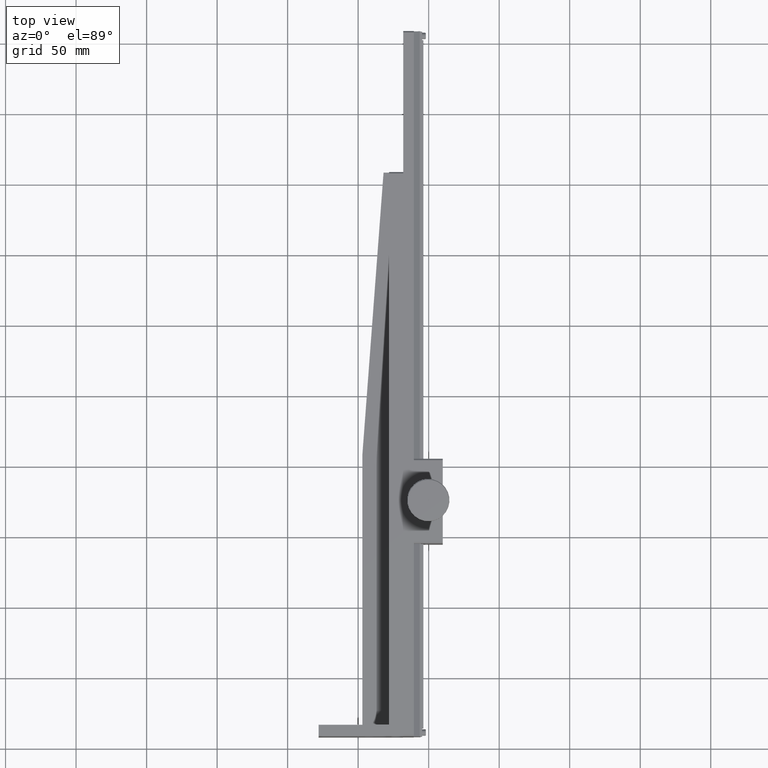
[diagram: clean part render]
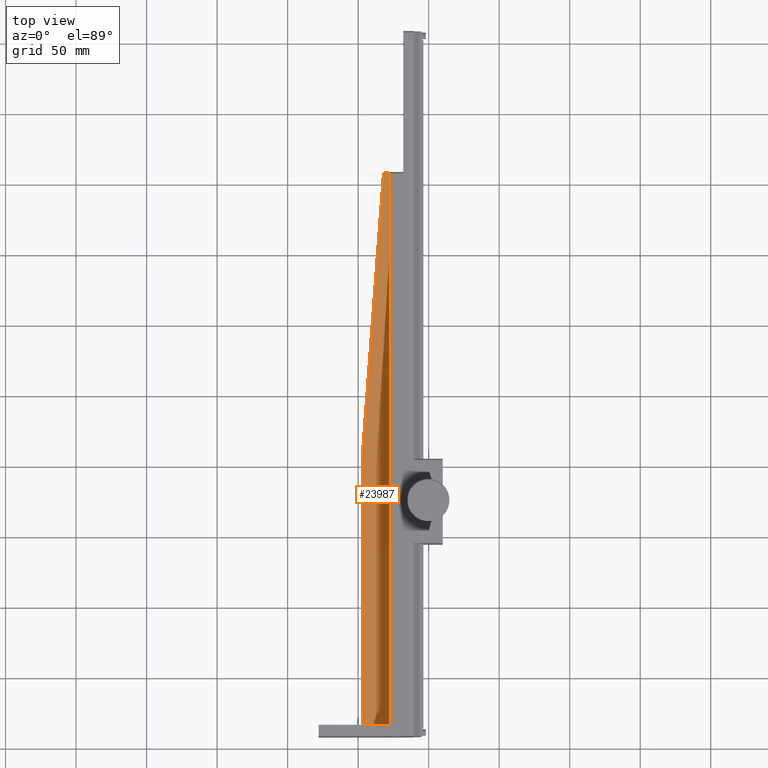
[diagram: same view with one face highlighted and labeled with its STEP entity id]
A machine part, top view. The second image highlights one B-rep face of the part: STEP entity #23987.
In plain terms, the highlighted planar face has unit normal (-0, -0, -1).
Its self-contained STEP definition (entity closure, byte-faithful):
#2255 = LINE ( 'NONE', #36049, #90484 ) ;
#7658 = DIRECTION ( 'NONE',  ( 1.000000000000000000, -1.276756478318930021E-15, -2.044860509396075866E-15 ) ) ;
#8398 = CARTESIAN_POINT ( 'NONE',  ( 3.000000000000266454, 16.00000000000001421, -24.00000000000007105 ) ) ;
#9260 = FACE_OUTER_BOUND ( 'NONE', #66374, .T. ) ;
#11796 = DIRECTION ( 'NONE',  ( -1.276756478318930021E-15, -1.000000000000000000, 2.095098079272746386E-16 ) ) ;
#11897 = DIRECTION ( 'NONE',  ( -1.276756478318930021E-15, -1.000000000000000000, 2.095098079272746386E-16 ) ) ;
#12900 = LINE ( 'NONE', #97671, #36964 ) ;
#13199 = AXIS2_PLACEMENT_3D ( 'NONE', #18108, #100688, #101248 ) ;
#16484 = EDGE_CURVE ( 'NONE', #18690, #26600, #72275, .T. ) ;
#17809 = LINE ( 'NONE', #8398, #51190 ) ;
#18108 = CARTESIAN_POINT ( 'NONE',  ( 3.000000000000766054, 408.0000000000000568, -24.00000000000015277 ) ) ;
#18690 = VERTEX_POINT ( 'NONE', #52942 ) ;
#19666 = CARTESIAN_POINT ( 'NONE',  ( 3.000000000000766054, 408.0000000000000568, -24.00000000000015277 ) ) ;
#23987 = ADVANCED_FACE ( 'NONE', ( #9260 ), #34184, .F. ) ;
#26600 = VERTEX_POINT ( 'NONE', #63745 ) ;
#26649 = DIRECTION ( 'NONE',  ( -1.000000000000000000, 1.276756478318930021E-15, 2.044860509396075866E-15 ) ) ;
#27828 = ORIENTED_EDGE ( 'NONE', *, *, #41276, .F. ) ;
#28647 = ORIENTED_EDGE ( 'NONE', *, *, #87901, .F. ) ;
#34184 = PLANE ( 'NONE',  #13199 ) ;
#36049 = CARTESIAN_POINT ( 'NONE',  ( -11.75388440024832626, 11.28154133001867088, -24.00000000000004619 ) ) ;
#36964 = VECTOR ( 'NONE', #11796, 1000.000000000000000 ) ;
#37780 = EDGE_CURVE ( 'NONE', #73475, #26600, #17809, .T. ) ;
#40748 = CARTESIAN_POINT ( 'NONE',  ( 18.00000000000076383, 408.0000000000000000, -24.00000000000018474 ) ) ;
#41276 = EDGE_CURVE ( 'NONE', #67894, #73475, #12900, .T. ) ;
#45439 = DIRECTION ( 'NONE',  ( 0.07478994824163544275, 0.9971993098884562867, -3.477024501898125677E-16 ) ) ;
#48061 = CARTESIAN_POINT ( 'NONE',  ( 22.00000000000026290, 15.99999999999999289, -24.00000000000010658 ) ) ;
#51190 = VECTOR ( 'NONE', #26649, 1000.000000000000000 ) ;
#52942 = CARTESIAN_POINT ( 'NONE',  ( 3.000000000000505818, 207.9999999999999432, -24.00000000000011369 ) ) ;
#63125 = ORIENTED_EDGE ( 'NONE', *, *, #16484, .T. ) ;
#63745 = CARTESIAN_POINT ( 'NONE',  ( 3.000000000000262901, 16.00000000000001421, -24.00000000000007105 ) ) ;
#64380 = VERTEX_POINT ( 'NONE', #40748 ) ;
#66374 = EDGE_LOOP ( 'NONE', ( #107840, #27828, #28647, #108725, #63125 ) ) ;
#67469 = LINE ( 'NONE', #83564, #67509 ) ;
#67509 = VECTOR ( 'NONE', #7658, 1000.000000000000000 ) ;
#67894 = VERTEX_POINT ( 'NONE', #109592 ) ;
#72275 = LINE ( 'NONE', #19666, #86628 ) ;
#73475 = VERTEX_POINT ( 'NONE', #48061 ) ;
#83564 = CARTESIAN_POINT ( 'NONE',  ( 3.000000000000766054, 408.0000000000000568, -24.00000000000015277 ) ) ;
#86628 = VECTOR ( 'NONE', #11897, 1000.000000000000000 ) ;
#87901 = EDGE_CURVE ( 'NONE', #64380, #67894, #67469, .T. ) ;
#90484 = VECTOR ( 'NONE', #45439, 1000.000000000000114 ) ;
#97671 = CARTESIAN_POINT ( 'NONE',  ( 22.00000000000076028, 408.0000000000000000, -24.00000000000019185 ) ) ;
#98218 = EDGE_CURVE ( 'NONE', #18690, #64380, #2255, .T. ) ;
#100688 = DIRECTION ( 'NONE',  ( -2.044860509396076261E-15, -2.095098079272722227E-16, -1.000000000000000000 ) ) ;
#101248 = DIRECTION ( 'NONE',  ( -1.000000000000000000, 1.276756478318930021E-15, 2.044860509396075866E-15 ) ) ;
#107840 = ORIENTED_EDGE ( 'NONE', *, *, #37780, .F. ) ;
#108725 = ORIENTED_EDGE ( 'NONE', *, *, #98218, .F. ) ;
#109592 = CARTESIAN_POINT ( 'NONE',  ( 22.00000000000076028, 408.0000000000000000, -24.00000000000019185 ) ) ;